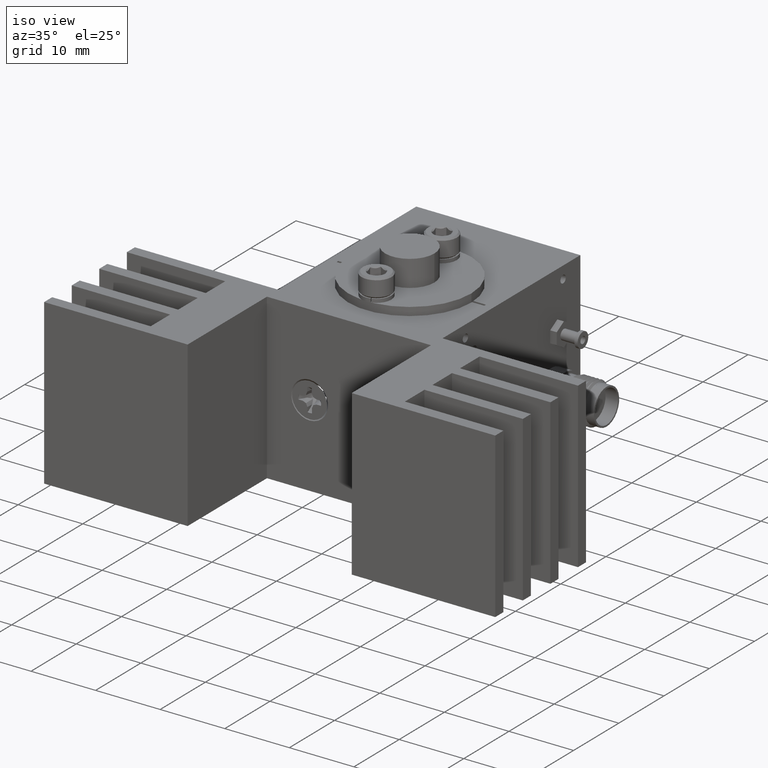
[diagram: clean part render]
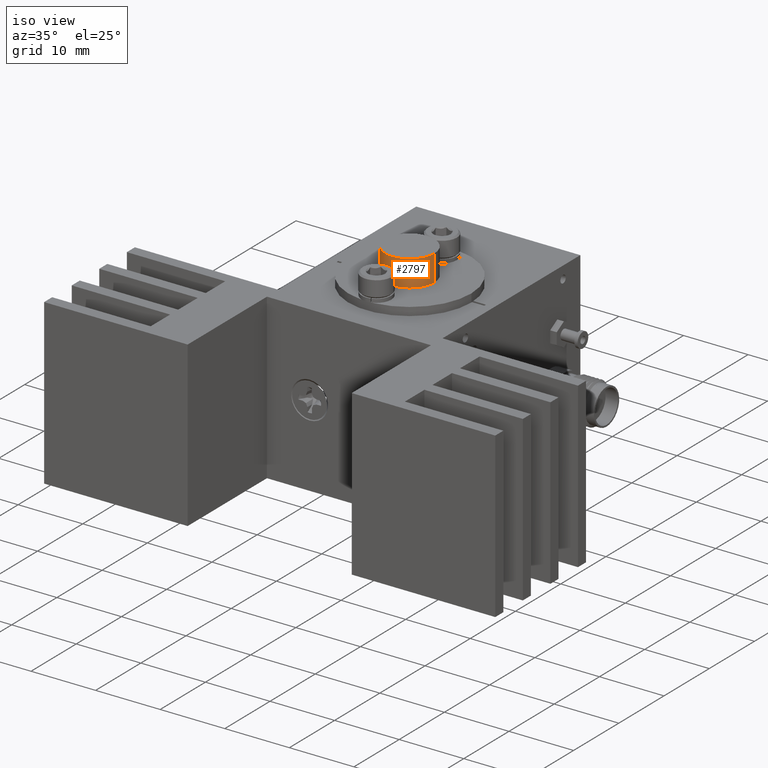
[diagram: same view with one face highlighted and labeled with its STEP entity id]
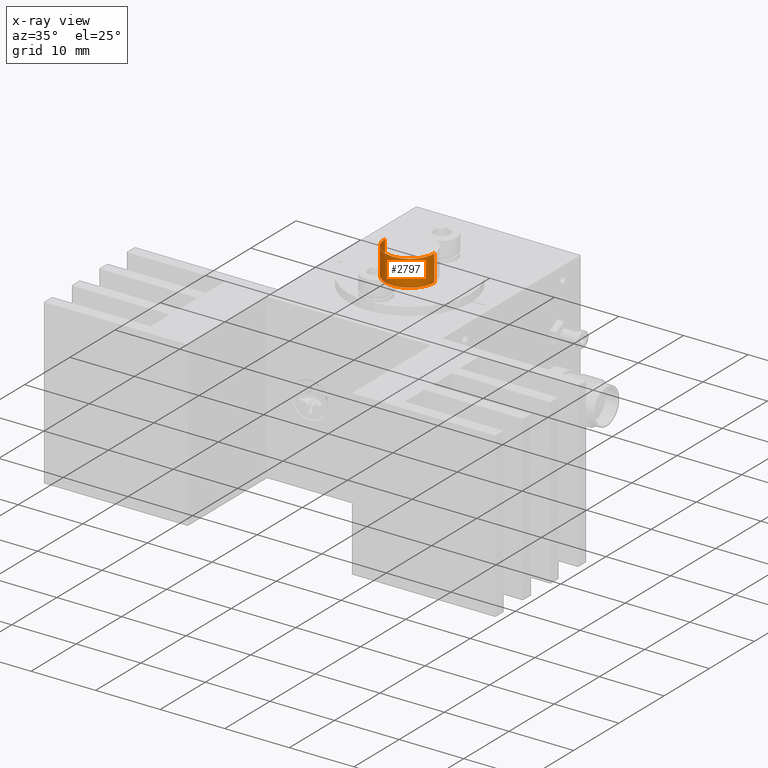
[diagram: x-ray of the same camera — body ghosted, the highlighted face saturated]
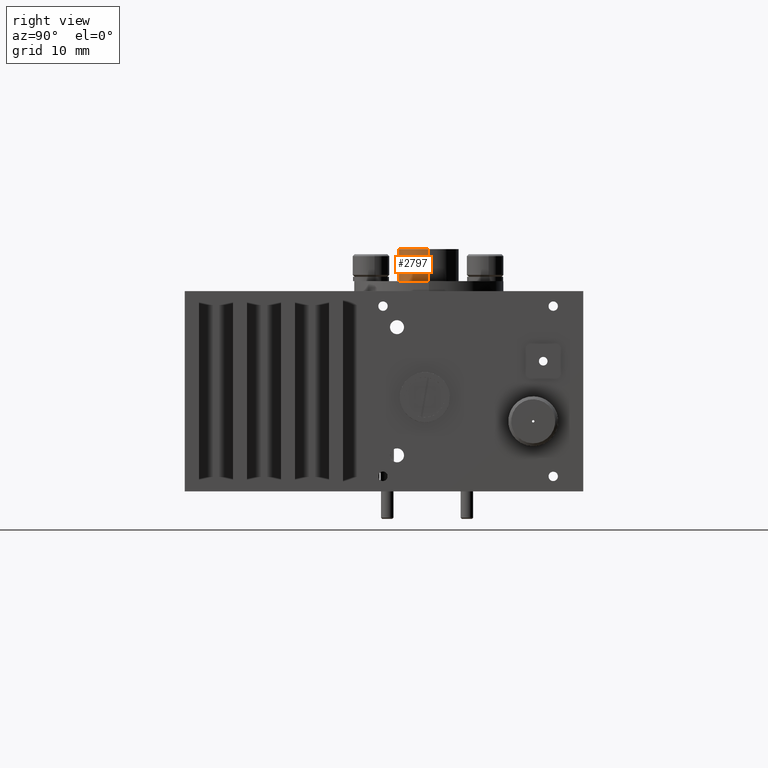
[diagram: same view with one face highlighted and labeled with its STEP entity id]
A machine part, iso view. The second image highlights one B-rep face of the part: STEP entity #2797.
The next image is the same camera in x-ray: the body ghosted, the highlighted face saturated — about 0% of this face is hidden behind the body in this view.
A second angle (right view) of the same face is appended — the face is thin or edge-on in the first view.
In plain terms, the highlighted cylindrical surface (edge-blend (fillet) strip) has radius 3.81 mm, axis along (-0, 0, -1).
Its self-contained STEP definition (entity closure, byte-faithful):
#271 = VERTEX_POINT ( 'NONE', #9947 ) ;
#830 = ORIENTED_EDGE ( 'NONE', *, *, #10980, .T. ) ;
#833 = DIRECTION ( 'NONE',  ( -6.950252707240226300E-018, 6.264030056288166700E-017, -1.000000000000000000 ) ) ;
#1567 = VERTEX_POINT ( 'NONE', #2476 ) ;
#1655 = LINE ( 'NONE', #4867, #16986 ) ;
#2026 = CARTESIAN_POINT ( 'NONE',  ( 3.821377216013702500, -0.5336705048237859700, 13.97000000000000800 ) ) ;
#2089 = CARTESIAN_POINT ( 'NONE',  ( 0.01138205198695372600, -0.5397409325501593100, 18.03400000000001000 ) ) ;
#2125 = DIRECTION ( 'NONE',  ( -6.950252707240226300E-018, 6.264030056288166700E-017, -1.000000000000000000 ) ) ;
#2476 = CARTESIAN_POINT ( 'NONE',  ( -3.798613112039796100, -0.5458113602765318800, 13.97000000000000800 ) ) ;
#2797 = ADVANCED_FACE ( 'NONE', ( #15583 ), #4248, .T. ) ;
#3447 = DIRECTION ( 'NONE',  ( -0.9999987307156823500, -0.001593288117158221100, 0.0000000000000000000 ) ) ;
#4248 = CYLINDRICAL_SURFACE ( 'NONE', #7418, 3.810000000000000100 ) ;
#4338 = ORIENTED_EDGE ( 'NONE', *, *, #14506, .T. ) ;
#4867 = CARTESIAN_POINT ( 'NONE',  ( 3.821377216013703400, -0.5336705048237857500, 12.69999999999893900 ) ) ;
#5639 = CARTESIAN_POINT ( 'NONE',  ( 3.821377216013702100, -0.5336705048237859700, 18.03400000000001000 ) ) ;
#5761 = AXIS2_PLACEMENT_3D ( 'NONE', #10815, #14857, #6755 ) ;
#5769 = LINE ( 'NONE', #10177, #11634 ) ;
#6755 = DIRECTION ( 'NONE',  ( -0.9999987307156823500, -0.001593288117158221100, 0.0000000000000000000 ) ) ;
#7418 = AXIS2_PLACEMENT_3D ( 'NONE', #7957, #17320, #10638 ) ;
#7957 = CARTESIAN_POINT ( 'NONE',  ( 0.01138205198695369000, -0.5397409325501589800, 12.69999999999893900 ) ) ;
#8433 = AXIS2_PLACEMENT_3D ( 'NONE', #2089, #15550, #3447 ) ;
#9947 = CARTESIAN_POINT ( 'NONE',  ( -3.798613112039795700, -0.5458113602765321000, 18.03400000000001000 ) ) ;
#10177 = CARTESIAN_POINT ( 'NONE',  ( -3.798613112039796100, -0.5458113602765317700, 12.69999999999893900 ) ) ;
#10184 = CIRCLE ( 'NONE', #8433, 3.809999999999999600 ) ;
#10303 = VERTEX_POINT ( 'NONE', #2026 ) ;
#10602 = EDGE_LOOP ( 'NONE', ( #15851, #830, #4338, #16071 ) ) ;
#10638 = DIRECTION ( 'NONE',  ( -0.9999987307156823500, -0.001593288117158221100, 0.0000000000000000000 ) ) ;
#10815 = CARTESIAN_POINT ( 'NONE',  ( 0.01138205198695369800, -0.5397409325501590900, 13.97000000000000800 ) ) ;
#10980 = EDGE_CURVE ( 'NONE', #13842, #271, #10184, .T. ) ;
#11634 = VECTOR ( 'NONE', #2125, 1000.000000000000000 ) ;
#13658 = EDGE_CURVE ( 'NONE', #10303, #1567, #16012, .T. ) ;
#13842 = VERTEX_POINT ( 'NONE', #5639 ) ;
#14506 = EDGE_CURVE ( 'NONE', #271, #1567, #5769, .T. ) ;
#14857 = DIRECTION ( 'NONE',  ( -6.950252707240226300E-018, 6.264030056288166700E-017, -1.000000000000000000 ) ) ;
#15550 = DIRECTION ( 'NONE',  ( -6.950252707240226300E-018, 6.264030056288166700E-017, -1.000000000000000000 ) ) ;
#15583 = FACE_OUTER_BOUND ( 'NONE', #10602, .T. ) ;
#15851 = ORIENTED_EDGE ( 'NONE', *, *, #17358, .F. ) ;
#16012 = CIRCLE ( 'NONE', #5761, 3.810000000000000100 ) ;
#16071 = ORIENTED_EDGE ( 'NONE', *, *, #13658, .F. ) ;
#16986 = VECTOR ( 'NONE', #833, 1000.000000000000000 ) ;
#17320 = DIRECTION ( 'NONE',  ( -6.950252707240226300E-018, 6.264030056288166700E-017, -1.000000000000000000 ) ) ;
#17358 = EDGE_CURVE ( 'NONE', #13842, #10303, #1655, .T. ) ;